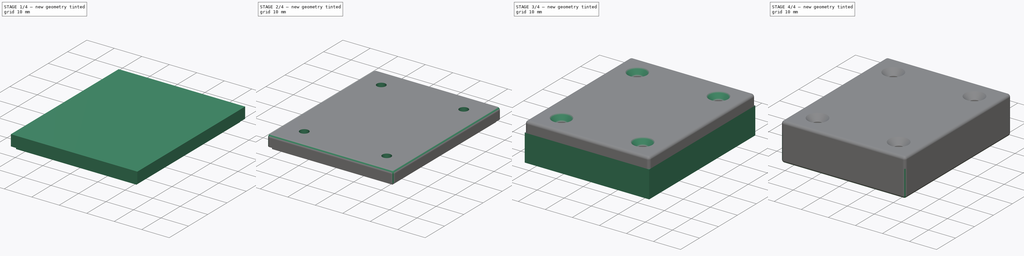
[diagram: build sequence overview — one tinted view per stage of 4, left to right]
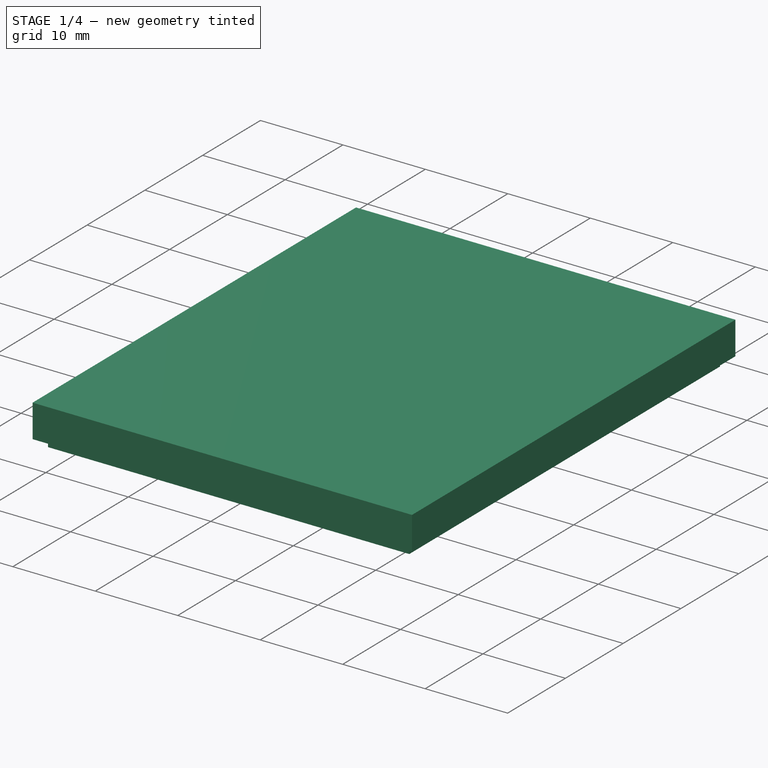
[diagram: stage 1 of 4 — iso view after this stage's code; geometry added in this stage tinted green]
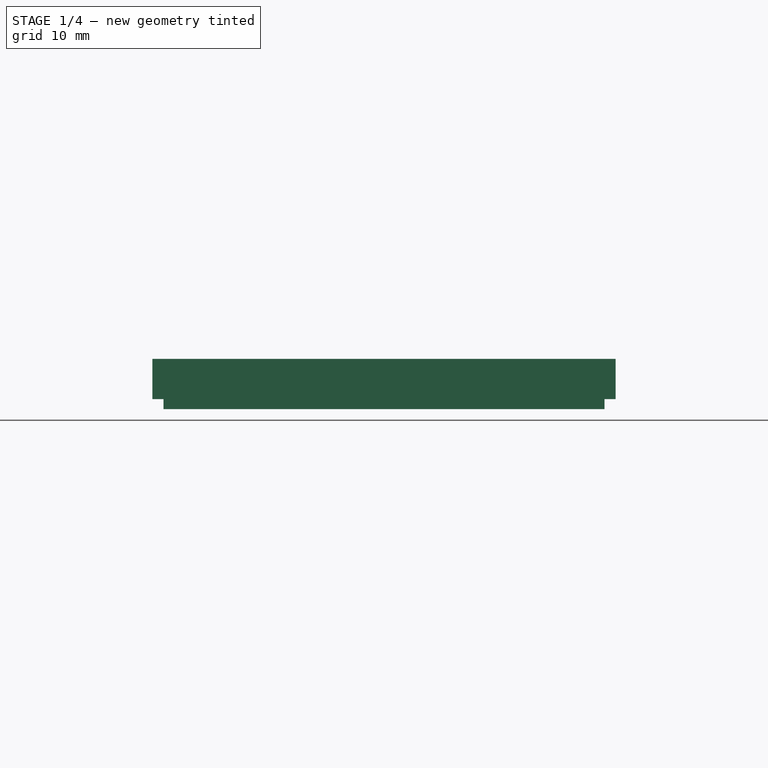
[diagram: stage 1 of 4 — front view after this stage's code; geometry added in this stage tinted green]
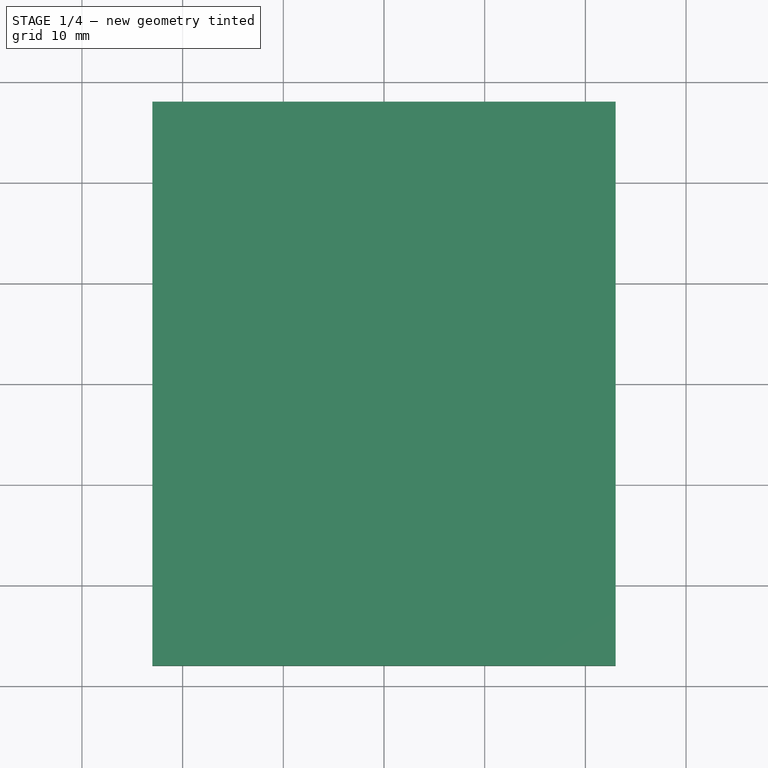
[diagram: stage 1 of 4 — top view after this stage's code; geometry added in this stage tinted green]
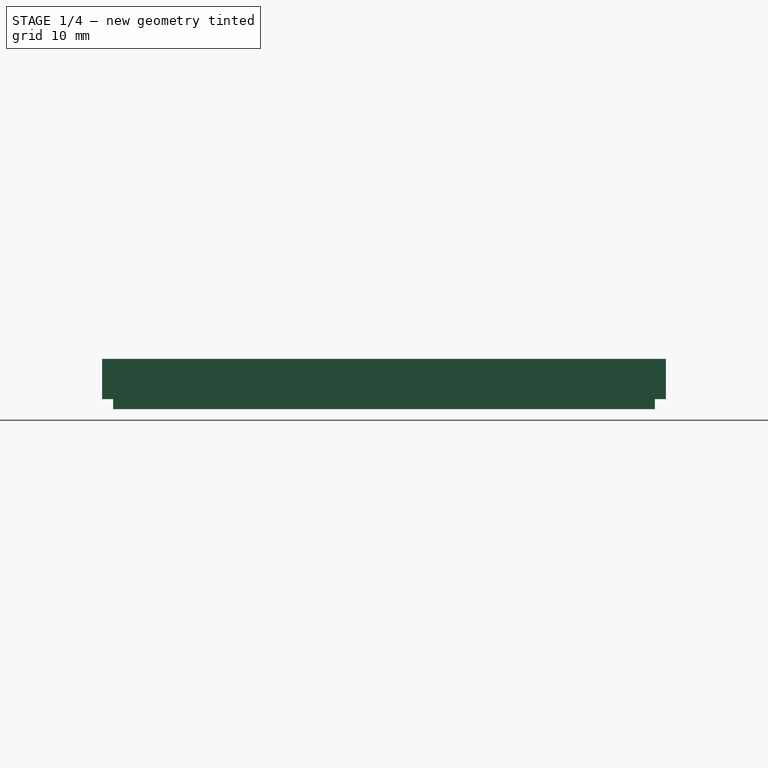
[diagram: stage 1 of 4 — right view after this stage's code; geometry added in this stage tinted green]
FCSTD DOCUMENT  (FreeCAD 0.19R24366 (Git))
Label: parametric_project_box
License: All rights reserved
LicenseURL: http://en.wikipedia.org/wiki/All_rights_reserved
objects: Sketcher::SketchObject×11, PartDesign::Plane×9, PartDesign::Pocket×6, PartDesign::Pad×5, PartDesign::Fillet×2, PartDesign::Body×2, Spreadsheet::Sheet×1, PartDesign::Chamfer×1
note: 50 computed .brp shape members not serialized (recipe doc carries the construction recipe); baked Part::Feature solids carry a one-line shape summary decoded from their .brp

FEATURE [PartDesign::Plane] DatumPlane001  label="coverBottom"
  AttachmentOffset = pos=(0,0,10) rot=(0,0,1;0rad)
  Length = 60.583
  MapMode = 5
  Placement = pos=(0,0,10) rot=(0,0,1;0rad)
  ResizeMode = 0
  Support = -> [XY_Plane001]
  Width = 66.583
  expr: .AttachmentOffset.Base.z = Spreadsheet.bottomHeight
FEATURE [Sketcher::SketchObject] Sketch002
  FullyConstrained = true
  MapMode = 5
  Placement = pos=(0,0,10) rot=(0,0,1;0rad)
  Support = -> [DatumPlane001]
  expr: Constraints[10] = <<Spreadsheet>>.boxDepth + (<<Spreadsheet>>.wallThickness + <<Spreadsheet>>.mountingDistance) * 2 + <<Spreadsheet>>.postHoleSize
  expr: Constraints[9] = <<Spreadsheet>>.boxWidth + (<<Spreadsheet>>.wallThickness + <<Spreadsheet>>.mountingDistance) * 2 + <<Spreadsheet>>.postHoleSize
  sketch-geometry (4):
    g0: LineSegment StartX=-23 StartY=28 StartZ=0 EndX=23 EndY=28 EndZ=0
    g1: LineSegment StartX=23 StartY=28 StartZ=0 EndX=23 EndY=-28 EndZ=0
    g2: LineSegment StartX=23 StartY=-28 StartZ=0 EndX=-23 EndY=-28 EndZ=0
    g3: LineSegment StartX=-23 StartY=-28 StartZ=0 EndX=-23 EndY=28 EndZ=0
  constraints (11):
    c: Coincident(g0,g1)
    c: Coincident(g1,g2)
    c: Coincident(g2,g3)
    c: Coincident(g3,g0)
    c: Horizontal(g0)
    c: Horizontal(g2)
    c: Vertical(g1)
    c: Vertical(g3)
    c: Symmetric(g0,g2,g-1)
    c: Distance(g2) = 46
    c: Distance(g1) = 56
FEATURE [PartDesign::Pad] Pad001  label="coverSolid"
  Direction = (1,1,1)
  Length = 4
  Length2 = 100
  Placement = pos=(0,0,10) rot=(0,0,1;0rad)
  Profile = -> Sketch002
  Type = 0
  expr: Length = <<Spreadsheet>>.topHeight
FEATURE [Sketcher::SketchObject] Sketch003
  FullyConstrained = true
  MapMode = 5
  Placement = pos=(0,0,10) rot=(0,0,1;0rad)
  Support = -> [DatumPlane001]
  expr: Constraints[10] = <<Spreadsheet>>.boxDepth + <<Spreadsheet>>.mountingDistance * 2 + <<Spreadsheet>>.postHoleSize
  expr: Constraints[9] = <<Spreadsheet>>.boxWidth + <<Spreadsheet>>.mountingDistance * 2 + <<Spreadsheet>>.postHoleSize
  sketch-geometry (4):
    g0: LineSegment StartX=21 StartY=26 StartZ=0 EndX=-21 EndY=26 EndZ=0
    g1: LineSegment StartX=-21 StartY=26 StartZ=0 EndX=-21 EndY=-26 EndZ=0
    g2: LineSegment StartX=-21 StartY=-26 StartZ=0 EndX=21 EndY=-26 EndZ=0
    g3: LineSegment StartX=21 StartY=-26 StartZ=0 EndX=21 EndY=26 EndZ=0
  constraints (11):
    c: Coincident(g0,g1)
    c: Coincident(g1,g2)
    c: Coincident(g2,g3)
    c: Coincident(g3,g0)
    c: Horizontal(g0)
    c: Horizontal(g2)
    c: Vertical(g1)
    c: Vertical(g3)
    c: Symmetric(g0,g1,g-1)
    c: Distance(g2) = 42
    c: Distance(g3) = 52
FEATURE [PartDesign::Pocket] Pocket001  label="coverPocket"
  BaseFeature = -> Pad001
  Length = 2
  Length2 = 100
  Placement = pos=(0,0,10) rot=(0,0,1;0rad)
  Profile = -> Sketch003
  Reversed = true
  Type = 0
  expr: Length = <<Spreadsheet>>.topHeight - <<Spreadsheet>>.wallThickness
FEATURE [Sketcher::SketchObject] Sketch005
  FullyConstrained = true
  MapMode = 5
  Placement = pos=(0,0,10) rot=(0,0,1;0rad)
  Support = -> [DatumPlane001]
  expr: Constraints[10] = <<Spreadsheet>>.boxWidth + <<Spreadsheet>>.wallThickness + <<Spreadsheet>>.mountingDistance * 2 + <<Spreadsheet>>.postHoleSize - 0.2
  expr: Constraints[9] = <<Spreadsheet>>.boxDepth + <<Spreadsheet>>.wallThickness + <<Spreadsheet>>.mountingDistance * 2 + <<Spreadsheet>>.postHoleSize - 0.2
  sketch-geometry (4):
    g0: LineSegment StartX=-21.9 StartY=-26.9 StartZ=0 EndX=21.9 EndY=-26.9 EndZ=0
    g1: LineSegment StartX=21.9 StartY=-26.9 StartZ=0 EndX=21.9 EndY=26.9 EndZ=0
    g2: LineSegment StartX=21.9 StartY=26.9 StartZ=0 EndX=-21.9 EndY=26.9 EndZ=0
    g3: LineSegment StartX=-21.9 StartY=26.9 StartZ=0 EndX=-21.9 EndY=-26.9 EndZ=0
  constraints (11):
    c: Coincident(g0,g1)
    c: Coincident(g1,g2)
    c: Coincident(g2,g3)
    c: Coincident(g3,g0)
    c: Horizontal(g0)
    c: Horizontal(g2)
    c: Vertical(g1)
    c: Vertical(g3)
    c: Symmetric(g1,g0,g-1)
    c: Distance(g1) = 53.8
    c: Distance(g0) = 43.8
FEATURE [PartDesign::Pad] Pad002  label="coverEdgeSolid"
  BaseFeature = -> Pocket001
  Direction = (1,1,1)
  Length = 1
  Length2 = 100
  Placement = pos=(0,0,10) rot=(0,0,1;0rad)
  Profile = -> Sketch005
  Reversed = true
  Type = 0
FEATURE [Sketcher::SketchObject] Sketch006
  FullyConstrained = true
  MapMode = 5
  Placement = pos=(0,0,10) rot=(0,0,1;0rad)
  Support = -> [DatumPlane001]
  expr: Constraints[10] = <<Spreadsheet>>.boxWidth + <<Spreadsheet>>.mountingDistance * 2 + <<Spreadsheet>>.postHoleSize
  expr: Constraints[9] = <<Spreadsheet>>.boxDepth + <<Spreadsheet>>.mountingDistance * 2 + <<Spreadsheet>>.postHoleSize
  sketch-geometry (4):
    g0: LineSegment StartX=-21 StartY=26 StartZ=0 EndX=21 EndY=26 EndZ=0
    g1: LineSegment StartX=21 StartY=26 StartZ=0 EndX=21 EndY=-26 EndZ=0
    g2: LineSegment StartX=21 StartY=-26 StartZ=0 EndX=-21 EndY=-26 EndZ=0
    g3: LineSegment StartX=-21 StartY=-26 StartZ=0 EndX=-21 EndY=26 EndZ=0
  constraints (11):
    c: Coincident(g0,g1)
    c: Coincident(g1,g2)
    c: Coincident(g2,g3)
    c: Coincident(g3,g0)
    c: Horizontal(g0)
    c: Horizontal(g2)
    c: Vertical(g1)
    c: Vertical(g3)
    c: Symmetric(g2,g0,g-1)
    c: Distance(g1) = 52
    c: Distance(g2) = 42
FEATURE [PartDesign::Pocket] Pocket003  label="coverEdgePocket"
  BaseFeature = -> Pad002
  Length = 1
  Length2 = 100
  Placement = pos=(0,0,10) rot=(0,0,1;0rad)
  Profile = -> Sketch006
  Type = 0
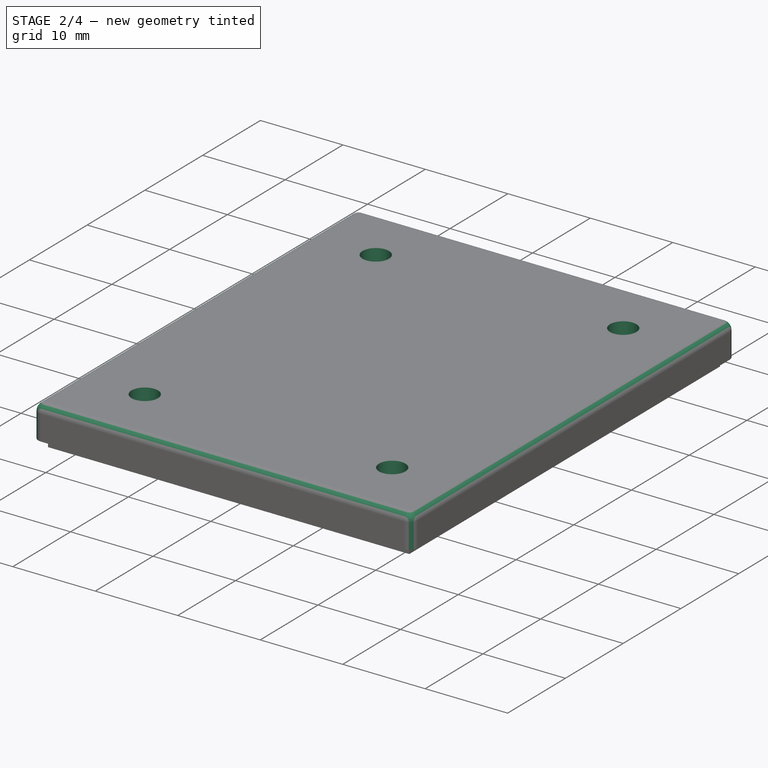
[diagram: stage 2 of 4 — iso view after this stage's code; geometry added in this stage tinted green]
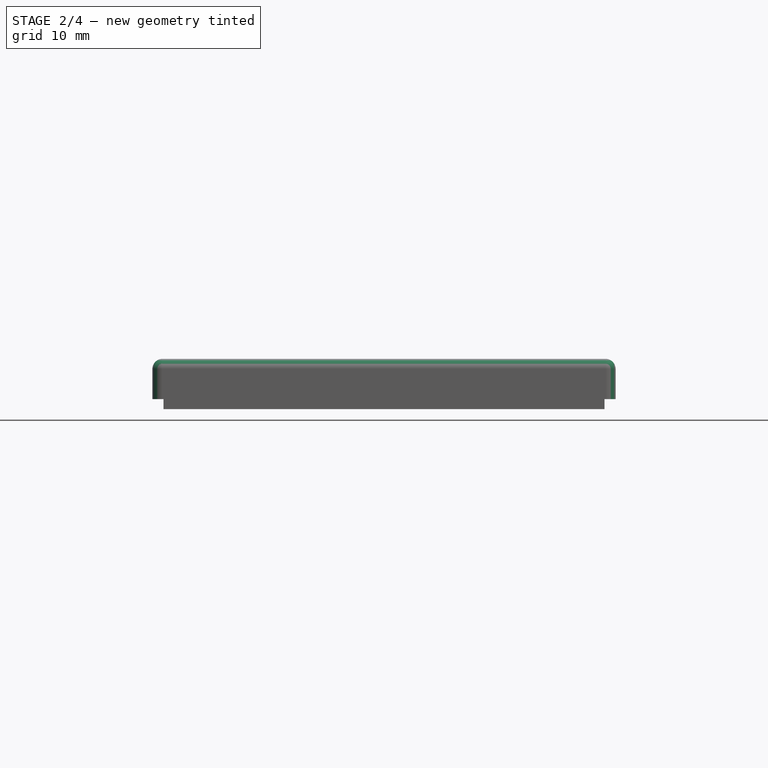
[diagram: stage 2 of 4 — front view after this stage's code; geometry added in this stage tinted green]
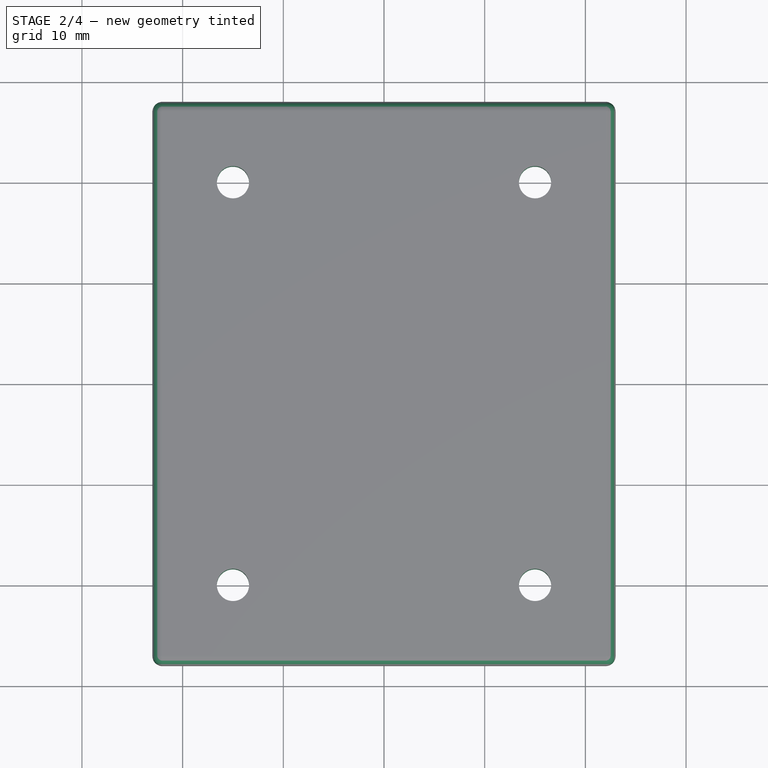
[diagram: stage 2 of 4 — top view after this stage's code; geometry added in this stage tinted green]
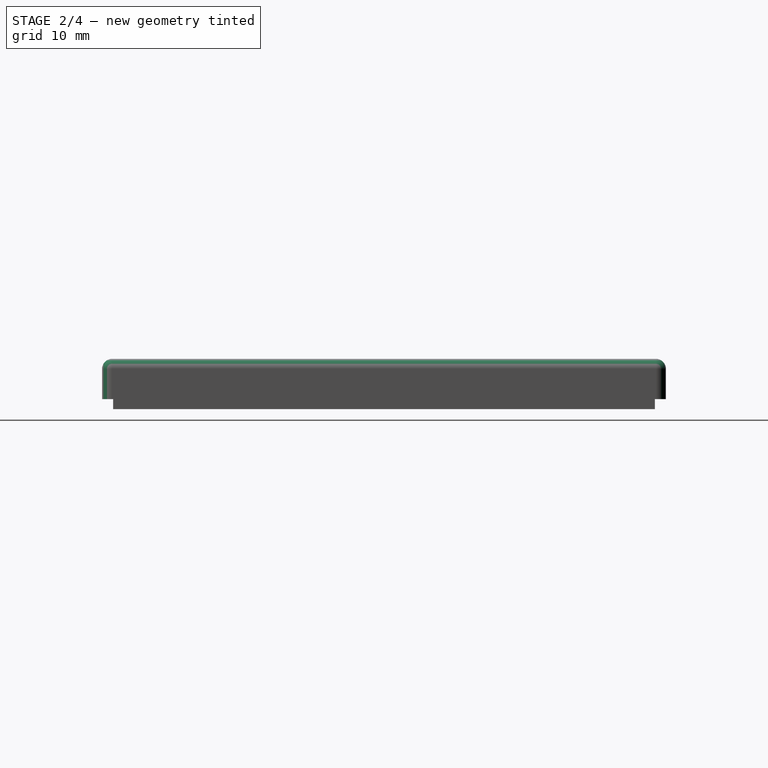
[diagram: stage 2 of 4 — right view after this stage's code; geometry added in this stage tinted green]
FEATURE [PartDesign::Plane] DatumPlane004  label="coverTopInner"
  AttachmentOffset = pos=(0,0,12) rot=(0,0,1;0rad)
  Length = 60.583
  MapMode = 5
  Placement = pos=(0,0,12) rot=(0,0,1;0rad)
  ResizeMode = 0
  Support = -> [XY_Plane001]
  Width = 66.583
  expr: .AttachmentOffset.Base.z = <<Spreadsheet>>.topHeight + <<Spreadsheet>>.bottomHeight - <<Spreadsheet>>.wallThickness
FEATURE [Sketcher::SketchObject] Sketch011
  FullyConstrained = true
  MapMode = 5
  Placement = pos=(0,0,12) rot=(0,0,1;0rad)
  Support = -> [DatumPlane004]
  expr: Constraints[66] = <<Spreadsheet>>.postHoleSize / 2 + <<Spreadsheet>>.mountingWallThickness
  expr: Constraints[65] = <<Spreadsheet>>.mountingDistance + <<Spreadsheet>>.postHoleSize / 2
  expr: Constraints[9] = <<Spreadsheet>>.boxWidth
  expr: Constraints[8] = <<Spreadsheet>>.boxDepth
  sketch-geometry (24):
    g0: LineSegment StartX=-15 StartY=20 StartZ=0 EndX=15 EndY=20 EndZ=0
    g1: LineSegment StartX=15 StartY=20 StartZ=0 EndX=15 EndY=-20 EndZ=0
    g2: LineSegment StartX=15 StartY=-20 StartZ=0 EndX=-15 EndY=-20 EndZ=0
    g3: LineSegment StartX=-15 StartY=-20 StartZ=0 EndX=-15 EndY=20 EndZ=0
    g4: ArcOfCircle CenterX=-15 CenterY=20 CenterZ=0 NormalX=0 NormalY=0 NormalZ=1 AngleXU=0 Radius=3.5 StartAngle=4.71239 EndAngle=6.28319
    g5: ArcOfCircle CenterX=-15 CenterY=-20 CenterZ=0 NormalX=0 NormalY=0 NormalZ=1 AngleXU=0 Radius=3.5 StartAngle=0 EndAngle=1.5708
    g6: ArcOfCircle CenterX=15 CenterY=-20 CenterZ=0 NormalX=0 NormalY=0 NormalZ=1 AngleXU=0 Radius=3.5 StartAngle=1.5708 EndAngle=3.14159
    g7: ArcOfCircle CenterX=15 CenterY=20 CenterZ=0 NormalX=0 NormalY=0 NormalZ=1 AngleXU=0 Radius=3.5 StartAngle=3.14159 EndAngle=4.71239
    g8: LineSegment StartX=-11.5 StartY=20 StartZ=0 EndX=-11.5 EndY=26 EndZ=0
    g9: LineSegment StartX=-11.5 StartY=26 StartZ=0 EndX=-21 EndY=26 EndZ=0
    g10: LineSegment StartX=-21 StartY=26 StartZ=0 EndX=-21 EndY=16.5 EndZ=0
    g11: LineSegment StartX=-21 StartY=16.5 StartZ=0 EndX=-15 EndY=16.5 EndZ=0
    g12: LineSegment StartX=-15 StartY=-16.5 StartZ=0 EndX=-21 EndY=-16.5 EndZ=0
    g13: LineSegment StartX=-21 StartY=-16.5 StartZ=0 EndX=-21 EndY=-26 EndZ=0
    g14: LineSegment StartX=-21 StartY=-26 StartZ=0 EndX=-11.5 EndY=-26 EndZ=0
    g15: LineSegment StartX=-11.5 StartY=-26 StartZ=0 EndX=-11.5 EndY=-20 EndZ=0
    g16: LineSegment StartX=11.5 StartY=-20 StartZ=0 EndX=11.5 EndY=-26 EndZ=0
    g17: LineSegment StartX=11.5 StartY=-26 StartZ=0 EndX=21 EndY=-26 EndZ=0
    g18: LineSegment StartX=21 StartY=-26 StartZ=0 EndX=21 EndY=-16.5 EndZ=0
    g19: LineSegment StartX=21 StartY=-16.5 StartZ=0 EndX=15 EndY=-16.5 EndZ=0
    g20: LineSegment StartX=15 StartY=16.5 StartZ=0 EndX=21 EndY=16.5 EndZ=0
    g21: LineSegment StartX=21 StartY=16.5 StartZ=0 EndX=21 EndY=26 EndZ=0
    g22: LineSegment StartX=21 StartY=26 StartZ=0 EndX=11.5 EndY=26 EndZ=0
    g23: LineSegment StartX=11.5 StartY=26 StartZ=0 EndX=11.5 EndY=20 EndZ=0
  constraints (67):
    c: Coincident(g0,g1)
    c: Coincident(g1,g2)
    c: Coincident(g2,g3)
    c: Coincident(g3,g0)
    c: Horizontal(g0)
    c: Horizontal(g2)
    c: Vertical(g1)
    c: Vertical(g3)
    c: Distance(g1) = 40
    c: Distance(g2) = 30
    c: Symmetric(g2,g0,g-1)
    c: Coincident(g4,g0)
    c: PointOnObject(g4,g0)
    c: PointOnObject(g4,g3)
    c: Coincident(g5,g2)
    c: PointOnObject(g5,g3)
    c: PointOnObject(g5,g2)
    c: Coincident(g6,g1)
    c: PointOnObject(g6,g1)
    c: PointOnObject(g6,g2)
    c: Coincident(g7,g0)
    c: PointOnObject(g7,g0)
    c: PointOnObject(g7,g1)
    c: Equal(g7,g6)
    c: Equal(g6,g5)
    c: Equal(g5,g4)
    c: Tangent(g4,g8) = -1.5708
    c: Coincident(g8,g9)
    c: Horizontal(g9)
    c: Coincident(g9,g10)
    c: Vertical(g10)
    c: Coincident(g10,g11)
    c: Coincident(g11,g4)
    c: Horizontal(g11)
    c: Tangent(g5,g12) = -1.5708
    c: Coincident(g12,g13)
    c: Vertical(g13)
    c: Coincident(g13,g14)
    c: Horizontal(g14)
    c: Coincident(g14,g15)
    c: Coincident(g15,g5)
    c: Vertical(g15)
    c: Tangent(g6,g16) = -1.5708
    c: Coincident(g16,g17)
    c: Horizontal(g17)
    c: Coincident(g17,g18)
    c: Vertical(g18)
    c: Coincident(g18,g19)
    c: Coincident(g19,g6)
    c: Horizontal(g19)
    c: Tangent(g7,g20) = -1.5708
    c: Coincident(g20,g21)
    c: Vertical(g21)
    c: Coincident(g21,g22)
    c: Horizontal(g22)
    c: Coincident(g22,g23)
    c: Coincident(g23,g7)
    c: Vertical(g23)
    c: Equal(g11,g8)
    c: Equal(g8,g12)
    c: Equal(g12,g15)
    c: Equal(g15,g16)
    c: Equal(g16,g19)
    c: Equal(g19,g20)
    c: Equal(g20,g23)
    c: Distance(g11) = 6
    c: Radius(g5) = 3.5
FEATURE [PartDesign::Pad] Pad005  label="contentPostsTop"
  BaseFeature = -> Pocket003
  Direction = (1,1,1)
  Length = 2
  Length2 = 100
  Placement = pos=(0,0,10) rot=(0,0,1;0rad)
  Profile = -> Sketch011
  Reversed = true
  Type = 0
  expr: Length = <<Spreadsheet>>.bottomHeight + <<Spreadsheet>>.topHeight - <<Spreadsheet>>.wallThickness * 2 - Spreadsheet.contentHeight4 - <<Spreadsheet>>.contentThickness
FEATURE [Sketcher::SketchObject] Sketch012
  FullyConstrained = true
  MapMode = 5
  Placement = pos=(0,0,14) rot=(0,0,1;0rad)
  Support = -> [DatumPlane002]
  expr: Constraints[18] = <<Spreadsheet>>.screwHoleSize
  expr: Constraints[10] = <<Spreadsheet>>.boxWidth
  expr: Constraints[9] = <<Spreadsheet>>.boxDepth
  sketch-geometry (8):
    g0: LineSegment StartX=-15 StartY=20 StartZ=0 EndX=15 EndY=20 EndZ=0
    g1: LineSegment StartX=15 StartY=20 StartZ=0 EndX=15 EndY=-20 EndZ=0
    g2: LineSegment StartX=15 StartY=-20 StartZ=0 EndX=-15 EndY=-20 EndZ=0
    g3: LineSegment StartX=-15 StartY=-20 StartZ=0 EndX=-15 EndY=20 EndZ=0
    g4: Circle CenterX=-15 CenterY=20 CenterZ=0 NormalX=0 NormalY=0 NormalZ=1 AngleXU=0 Radius=1.6
    g5: Circle CenterX=15 CenterY=20 CenterZ=0 NormalX=0 NormalY=0 NormalZ=1 AngleXU=0 Radius=1.6
    g6: Circle CenterX=15 CenterY=-20 CenterZ=0 NormalX=0 NormalY=0 NormalZ=1 AngleXU=0 Radius=1.6
    g7: Circle CenterX=-15 CenterY=-20 CenterZ=0 NormalX=0 NormalY=0 NormalZ=1 AngleXU=0 Radius=1.6
  constraints (19):
    c: Coincident(g0,g1)
    c: Coincident(g1,g2)
    c: Coincident(g2,g3)
    c: Coincident(g3,g0)
    c: Horizontal(g0)
    c: Horizontal(g2)
    c: Vertical(g1)
    c: Vertical(g3)
    c: Symmetric(g0,g2,g-1)
    c: Distance(g1) = 40
    c: Distance(g2) = 30
    c: Coincident(g4,g0)
    c: Coincident(g5,g0)
    c: Coincident(g6,g1)
    c: Coincident(g7,g2)
    c: Equal(g4,g7)
    c: Equal(g7,g5)
    c: Equal(g5,g6)
    c: Diameter(g4) = 3.2
FEATURE [PartDesign::Pocket] Pocket006  label="contentHolesTop"
  BaseFeature = -> Pad005
  Length = 4
  Length2 = 100
  Placement = pos=(0,0,10) rot=(0,0,1;0rad)
  Profile = -> Sketch012
  Type = 0
  expr: Length = <<Spreadsheet>>.bottomHeight + <<Spreadsheet>>.topHeight - <<Spreadsheet>>.wallThickness * 1 - Spreadsheet.contentHeight4 - <<Spreadsheet>>.contentThickness
FEATURE [PartDesign::Fillet] Fillet001
  Base = -> Pocket006 [Edge10,Edge4,Edge2,Edge1,Edge5,Edge7,Edge16,Edge8]
  BaseFeature = -> Pocket006
  Placement = pos=(0,0,10) rot=(0,0,1;0rad)
  Radius = 1
  SupportTransform = false
  expr: Radius = <<Spreadsheet>>.filletOuter
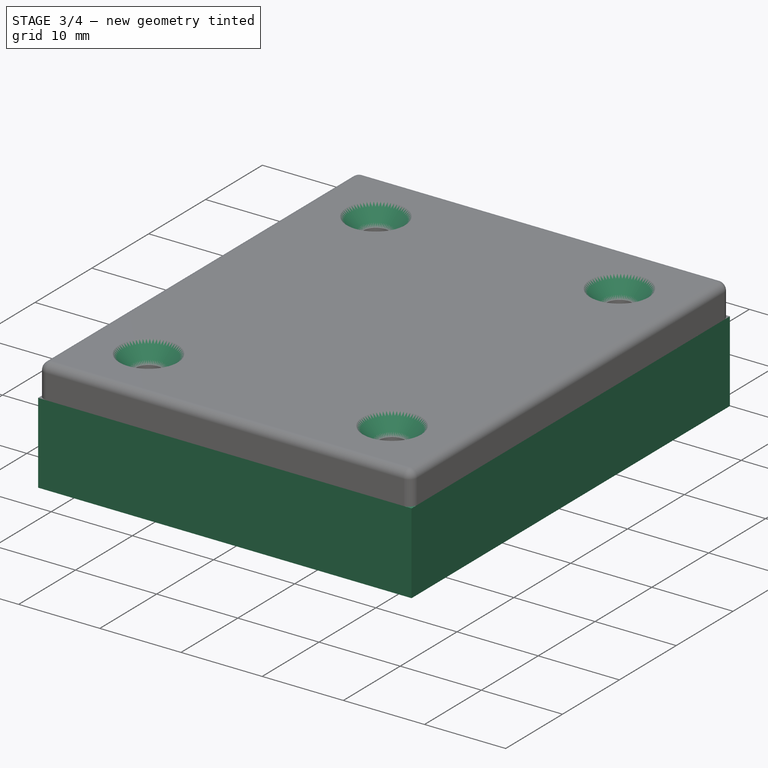
[diagram: stage 3 of 4 — iso view after this stage's code; geometry added in this stage tinted green]
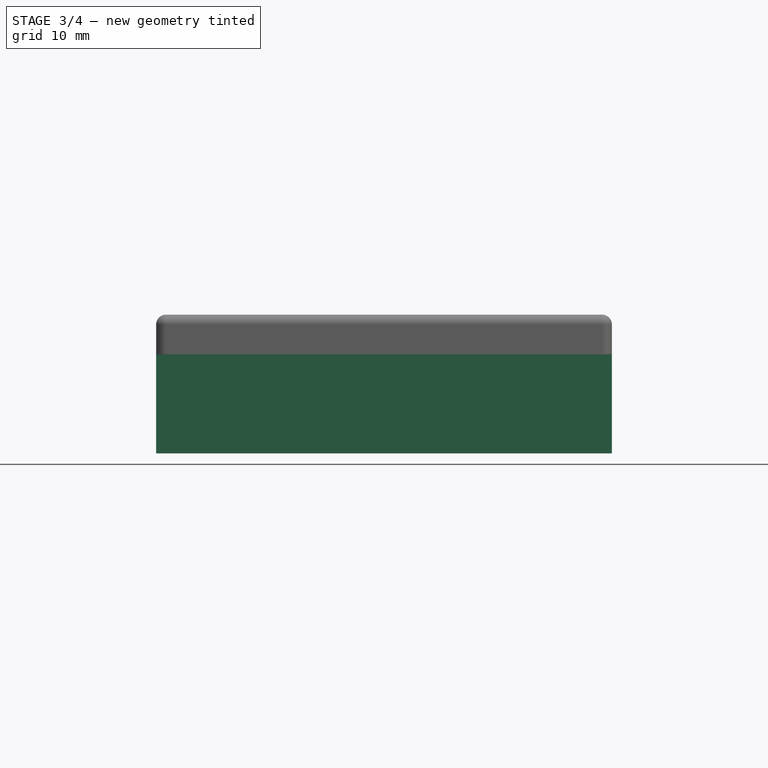
[diagram: stage 3 of 4 — front view after this stage's code; geometry added in this stage tinted green]
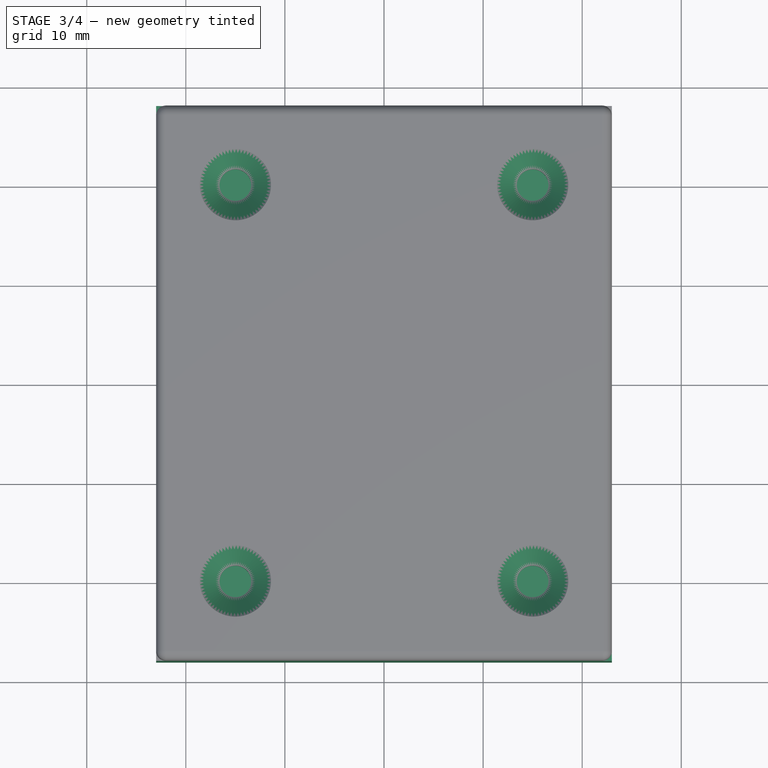
[diagram: stage 3 of 4 — top view after this stage's code; geometry added in this stage tinted green]
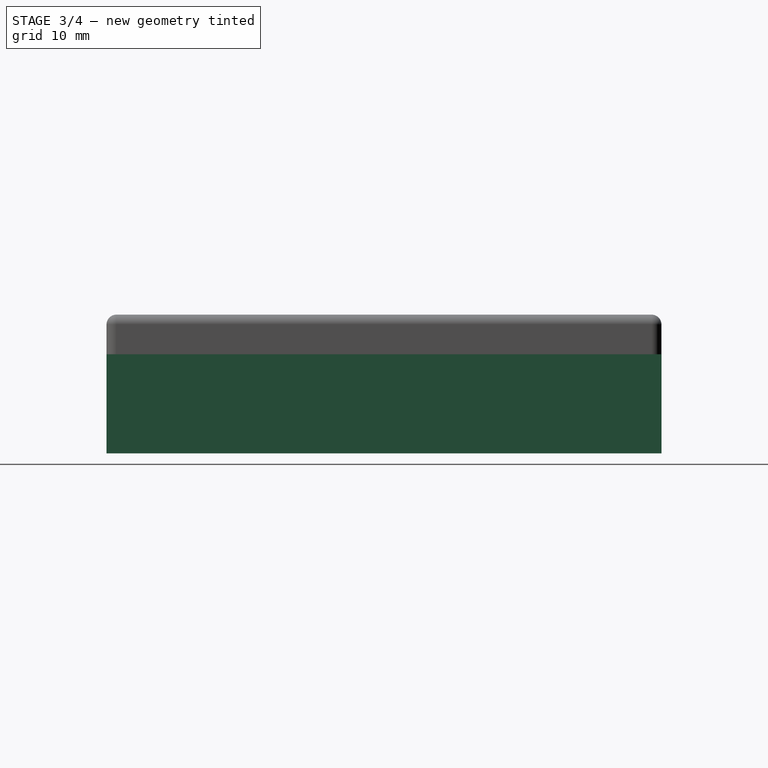
[diagram: stage 3 of 4 — right view after this stage's code; geometry added in this stage tinted green]
FEATURE [Spreadsheet::Sheet] Spreadsheet
  cells = A1=Box bottom height; B1=Box top height; A2(bottomHeight)=10; B2(topHeight)=4; A3=Wall thickness; B3=Outer fillet; A4(wallThickness)=2; B4(filletOuter)=1; A5=Content Hole Width; B5=Content Hole Depth; A6(boxWidth)=30; B6(boxDepth)=40; A7=screw hole size; B7=screw wall thickness; C7=Mounting distance; D7=post hole size; E7=Screw hole chamfer; A8(screwHoleSize)=3.2; B8(mountingWallThickness)=1.5; C8(mountingDistance)=4; D8(postHoleSize)=4; E8(chamferScrewHole)=2; A9=Content Height; B9=Content Thickness; A10(contentHeight4)=6; B10(contentThickness)=2
FEATURE [Sketcher::SketchObject] Sketch
  FullyConstrained = true
  MapMode = 5
  Support = -> [XY_Plane]
  expr: Constraints[9] = <<Spreadsheet>>.boxDepth + (<<Spreadsheet>>.wallThickness + <<Spreadsheet>>.mountingDistance) * 2 + <<Spreadsheet>>.postHoleSize
  expr: Constraints[10] = <<Spreadsheet>>.boxWidth + (<<Spreadsheet>>.wallThickness + <<Spreadsheet>>.mountingDistance) * 2 + <<Spreadsheet>>.postHoleSize
  sketch-geometry (4):
    g0: LineSegment StartX=-23 StartY=28 StartZ=0 EndX=23 EndY=28 EndZ=0
    g1: LineSegment StartX=23 StartY=28 StartZ=0 EndX=23 EndY=-28 EndZ=0
    g2: LineSegment StartX=23 StartY=-28 StartZ=0 EndX=-23 EndY=-28 EndZ=0
    g3: LineSegment StartX=-23 StartY=-28 StartZ=0 EndX=-23 EndY=28 EndZ=0
  constraints (11):
    c: Coincident(g0,g1)
    c: Coincident(g1,g2)
    c: Coincident(g2,g3)
    c: Coincident(g3,g0)
    c: Horizontal(g0)
    c: Horizontal(g2)
    c: Vertical(g1)
    c: Vertical(g3)
    c: Symmetric(g2,g0,g-1)
    c: Distance(g1) = 56
    c: Distance(g2) = 46
FEATURE [PartDesign::Pad] Pad  label="bottomSolid"
  Direction = (1,1,1)
  Length = 10
  Length2 = 100
  Profile = -> Sketch
  Type = 0
  expr: Length = Spreadsheet.bottomHeight
FEATURE [PartDesign::Plane] DatumPlane  label="bottomtop"
  AttachmentOffset = pos=(0,0,10) rot=(0,0,1;0rad)
  Length = 60.583
  MapMode = 5
  Placement = pos=(0,0,10) rot=(0,0,1;0rad)
  ResizeMode = 0
  Support = -> [XY_Plane]
  Width = 66.583
  expr: .AttachmentOffset.Base.z = Spreadsheet.bottomHeight
FEATURE [Sketcher::SketchObject] Sketch001
  FullyConstrained = true
  MapMode = 5
  Placement = pos=(0,0,10) rot=(0,0,1;0rad)
  Support = -> [DatumPlane]
  expr: Constraints[10] = <<Spreadsheet>>.boxWidth + <<Spreadsheet>>.mountingDistance * 2 + <<Spreadsheet>>.postHoleSize
  expr: Constraints[9] = <<Spreadsheet>>.boxDepth + <<Spreadsheet>>.mountingDistance * 2 + <<Spreadsheet>>.postHoleSize
  sketch-geometry (4):
    g0: LineSegment StartX=-21 StartY=26 StartZ=0 EndX=21 EndY=26 EndZ=0
    g1: LineSegment StartX=21 StartY=26 StartZ=0 EndX=21 EndY=-26 EndZ=0
    g2: LineSegment StartX=21 StartY=-26 StartZ=0 EndX=-21 EndY=-26 EndZ=0
    g3: LineSegment StartX=-21 StartY=-26 StartZ=0 EndX=-21 EndY=26 EndZ=0
  constraints (11):
    c: Coincident(g0,g1)
    c: Coincident(g1,g2)
    c: Coincident(g2,g3)
    c: Coincident(g3,g0)
    c: Horizontal(g0)
    c: Horizontal(g2)
    c: Vertical(g1)
    c: Vertical(g3)
    c: Symmetric(g0,g2,g-1)
    c: Distance(g1) = 52
    c: Distance(g2) = 42
FEATURE [PartDesign::Pocket] Pocket  label="boxHole"
  BaseFeature = -> Pad
  Length = 8
  Length2 = 100
  Profile = -> Sketch001
  Type = 0
  expr: Length = Spreadsheet.bottomHeight - <<Spreadsheet>>.wallThickness
FEATURE [PartDesign::Chamfer] Chamfer
  Angle = 45
  Base = -> Fillet001 [Edge50,Edge49,Edge47,Edge48]
  BaseFeature = -> Fillet001
  ChamferType = 0
  FlipDirection = false
  Placement = pos=(0,0,10) rot=(0,0,1;0rad)
  Size = 2
  Size2 = 1
  SupportTransform = false
  expr: Size = <<Spreadsheet>>.chamferScrewHole
FEATURE [PartDesign::Body] Body001  label="boxCover"
  Group = -> [DatumPlane001,Sketch002,Pad001,Sketch003,Pocket001,Sketch005,Pad002,Sketch006,Pocket003,DatumPlane002,DatumPlane004,Sketch011,Pad005,Sketch012,Pocket006,Fillet001,Chamfer]
  Origin = -> Origin001
  Tip = -> Chamfer
FEATURE [PartDesign::Plane] DatumPlane005  label="plane_front"
  AttachmentOffset = pos=(0,0,28) rot=(0,0,1;0rad)
  Length = 60
  MapMode = 2
  Placement = pos=(0,-28,-6.2e-15) rot=(1,0,0;1.5708rad)
  ResizeMode = 0
  Support = -> [XZ_Plane]
  Width = 60
  expr: .AttachmentOffset.Base.z = (<<Spreadsheet>>.boxDepth + (<<Spreadsheet>>.wallThickness + <<Spreadsheet>>.mountingDistance) * 2 + <<Spreadsheet>>.postHoleSize) / 2
FEATURE [PartDesign::Plane] DatumPlane006  label="plane_back"
  AttachmentOffset = pos=(0,0,-28) rot=(0,0,1;0rad)
  Length = 60
  MapMode = 5
  Placement = pos=(0,28,6.2e-15) rot=(1,0,0;1.5708rad)
  ResizeMode = 0
  Support = -> [XZ_Plane]
  Width = 60
  expr: .AttachmentOffset.Base.z = -(<<Spreadsheet>>.boxDepth + (<<Spreadsheet>>.wallThickness + <<Spreadsheet>>.mountingDistance) * 2 + <<Spreadsheet>>.postHoleSize) / 2
FEATURE [PartDesign::Plane] DatumPlane007  label="plane_right"
  AttachmentOffset = pos=(0,0,23) rot=(0,0,1;0rad)
  Length = 66.583
  MapMode = 2
  Placement = pos=(23,-5.1e-15,5.1e-15) rot=(0.57735,0.57735,0.57735;2.0944rad)
  ResizeMode = 0
  Support = -> [YZ_Plane]
  Width = 60.583
  expr: .AttachmentOffset.Base.z = (<<Spreadsheet>>.boxWidth + (<<Spreadsheet>>.wallThickness + <<Spreadsheet>>.mountingDistance) * 2 + <<Spreadsheet>>.postHoleSize) / 2
FEATURE [PartDesign::Plane] DatumPlane008  label="plane_left"
  AttachmentOffset = pos=(0,0,-23) rot=(0,0,1;0rad)
  Length = 66.583
  MapMode = 5
  Placement = pos=(-23,5.1e-15,-5.1e-15) rot=(0.57735,0.57735,0.57735;2.0944rad)
  ResizeMode = 0
  Support = -> [YZ_Plane]
  Width = 60.583
  expr: .AttachmentOffset.Base.z = -(<<Spreadsheet>>.boxWidth + (<<Spreadsheet>>.wallThickness + <<Spreadsheet>>.mountingDistance) * 2 + <<Spreadsheet>>.postHoleSize) / 2
FEATURE [PartDesign::Body] Body  label="boxBottom"
  Group = -> [Sketch,Pad,DatumPlane,Sketch001,Pocket,Sketch004,Pocket002,DatumPlane003,Sketch009,Pad004,Sketch010,Pocket005,Fillet,DatumPlane005,DatumPlane006,DatumPlane007,DatumPlane008]
  Origin = -> Origin
  Tip = -> Fillet
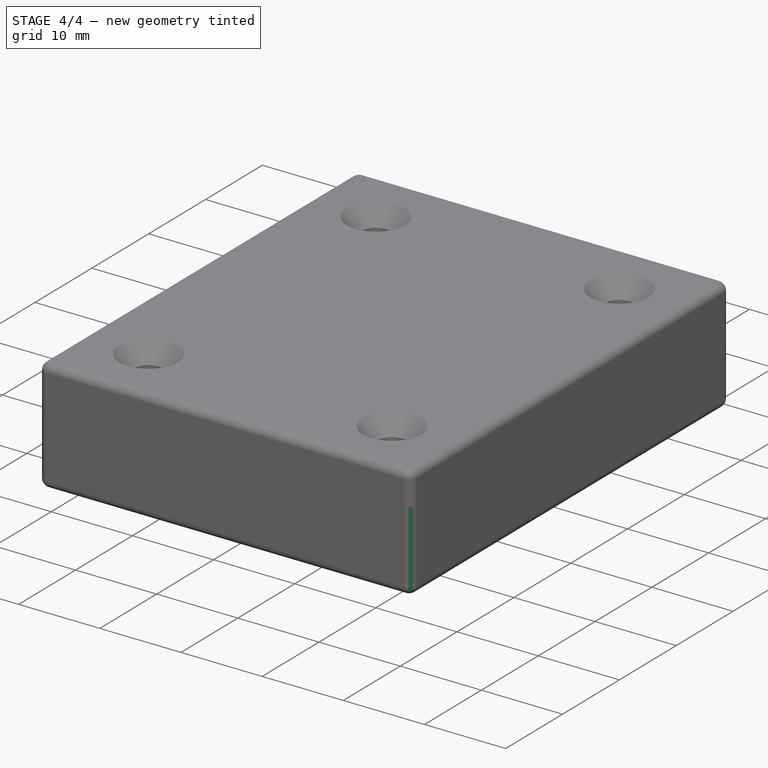
[diagram: stage 4 of 4 — iso view after this stage's code; geometry added in this stage tinted green]
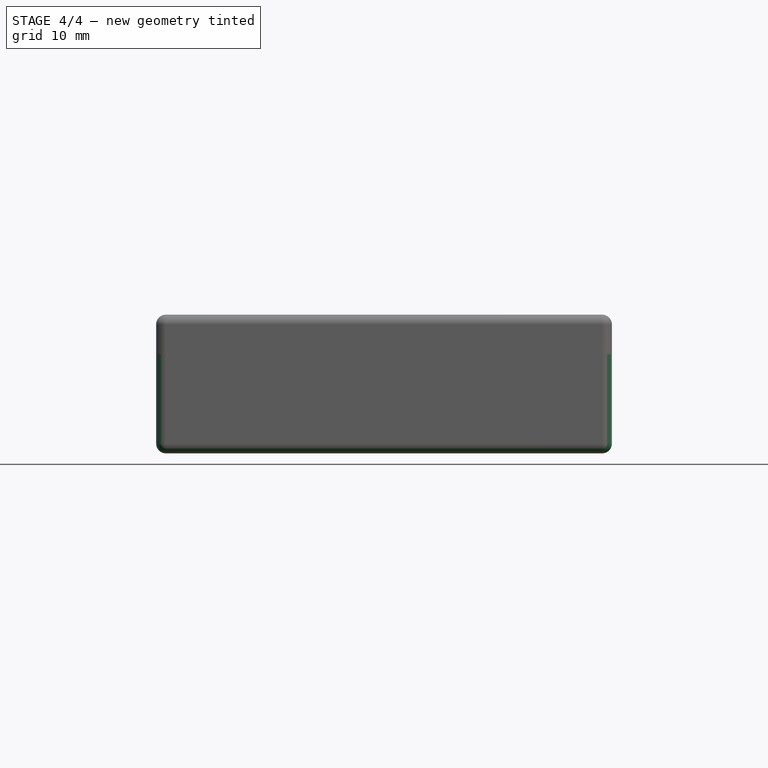
[diagram: stage 4 of 4 — front view after this stage's code; geometry added in this stage tinted green]
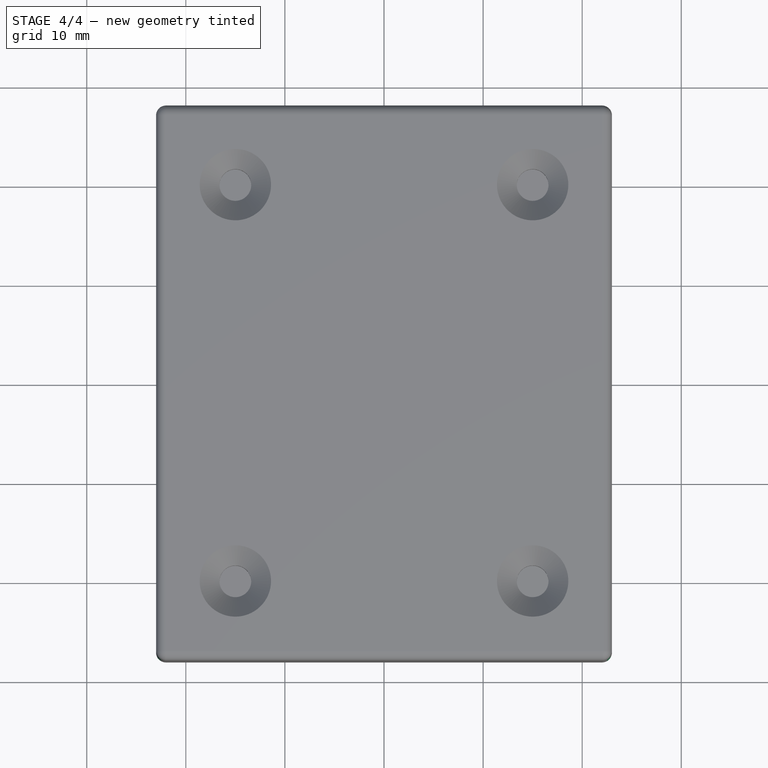
[diagram: stage 4 of 4 — top view after this stage's code; geometry added in this stage tinted green]
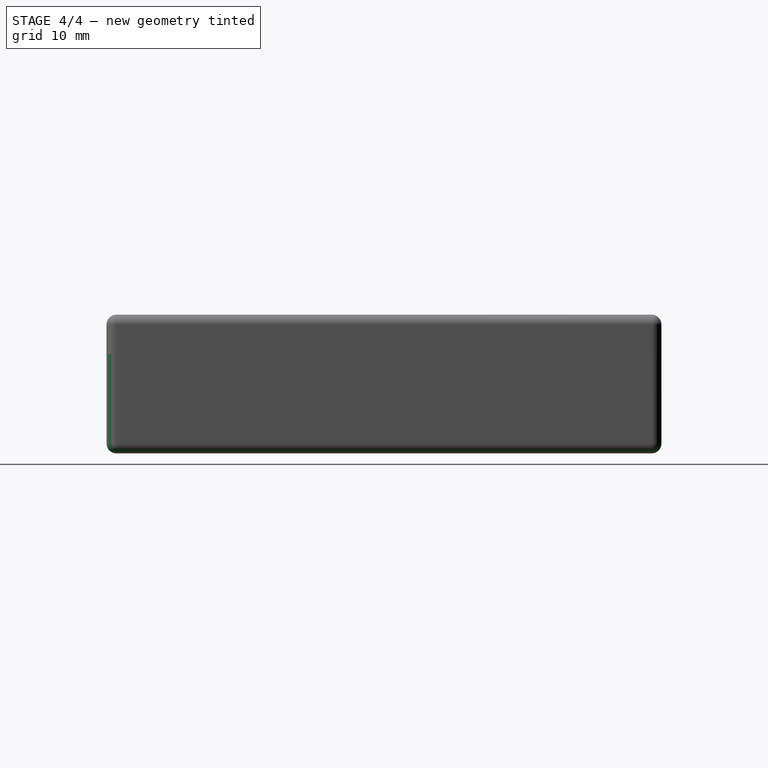
[diagram: stage 4 of 4 — right view after this stage's code; geometry added in this stage tinted green]
FEATURE [Sketcher::SketchObject] Sketch004
  FullyConstrained = true
  MapMode = 5
  Placement = pos=(0,0,10) rot=(0,0,1;0rad)
  Support = -> [DatumPlane]
  expr: Constraints[10] = <<Spreadsheet>>.boxWidth + <<Spreadsheet>>.wallThickness + <<Spreadsheet>>.mountingDistance * 2 + <<Spreadsheet>>.postHoleSize + 0.2
  expr: Constraints[9] = <<Spreadsheet>>.boxDepth + <<Spreadsheet>>.wallThickness + <<Spreadsheet>>.mountingDistance * 2 + <<Spreadsheet>>.postHoleSize + 0.2
  sketch-geometry (4):
    g0: LineSegment StartX=-22.1 StartY=27.1 StartZ=0 EndX=22.1 EndY=27.1 EndZ=0
    g1: LineSegment StartX=22.1 StartY=27.1 StartZ=0 EndX=22.1 EndY=-27.1 EndZ=0
    g2: LineSegment StartX=22.1 StartY=-27.1 StartZ=0 EndX=-22.1 EndY=-27.1 EndZ=0
    g3: LineSegment StartX=-22.1 StartY=-27.1 StartZ=0 EndX=-22.1 EndY=27.1 EndZ=0
  constraints (11):
    c: Coincident(g0,g1)
    c: Coincident(g1,g2)
    c: Coincident(g2,g3)
    c: Coincident(g3,g0)
    c: Horizontal(g0)
    c: Horizontal(g2)
    c: Vertical(g1)
    c: Vertical(g3)
    c: Symmetric(g2,g0,g-1)
    c: Distance(g1) = 54.2
    c: Distance(g2) = 44.2
FEATURE [PartDesign::Pocket] Pocket002  label="alignmentEdge"
  BaseFeature = -> Pocket
  Length = 1
  Length2 = 100
  Profile = -> Sketch004
  Type = 0
FEATURE [PartDesign::Plane] DatumPlane002  label="coverTop"
  AttachmentOffset = pos=(0,0,14) rot=(0,0,1;0rad)
  Length = 60.583
  MapMode = 5
  Placement = pos=(0,0,14) rot=(0,0,1;0rad)
  ResizeMode = 0
  Support = -> [XY_Plane001]
  Width = 66.583
  expr: .AttachmentOffset.Base.z = <<Spreadsheet>>.bottomHeight + <<Spreadsheet>>.topHeight
FEATURE [PartDesign::Plane] DatumPlane003  label="contentPlane"
  AttachmentOffset = pos=(0,0,8) rot=(0,0,1;0rad)
  Length = 60.583
  MapMode = 5
  Placement = pos=(0,0,8) rot=(0,0,1;0rad)
  ResizeMode = 0
  Support = -> [XY_Plane]
  Width = 66.583
  expr: .AttachmentOffset.Base.z = <<Spreadsheet>>.wallThickness + Spreadsheet.contentHeight4
FEATURE [Sketcher::SketchObject] Sketch009
  FullyConstrained = true
  MapMode = 5
  Placement = pos=(0,0,8) rot=(0,0,1;0rad)
  Support = -> [DatumPlane003]
  expr: Constraints[9] = <<Spreadsheet>>.boxDepth
  expr: Constraints[10] = <<Spreadsheet>>.boxWidth
  expr: Constraints[26] = <<Spreadsheet>>.postHoleSize / 2 + <<Spreadsheet>>.mountingWallThickness
  expr: Constraints[35] = <<Spreadsheet>>.mountingDistance + <<Spreadsheet>>.postHoleSize / 2
  sketch-geometry (24):
    g0: LineSegment StartX=-15 StartY=20 StartZ=0 EndX=15 EndY=20 EndZ=0
    g1: LineSegment StartX=15 StartY=20 StartZ=0 EndX=15 EndY=-20 EndZ=0
    g2: LineSegment StartX=15 StartY=-20 StartZ=0 EndX=-15 EndY=-20 EndZ=0
    g3: LineSegment StartX=-15 StartY=-20 StartZ=0 EndX=-15 EndY=20 EndZ=0
    g4: ArcOfCircle CenterX=-15 CenterY=-20 CenterZ=0 NormalX=0 NormalY=0 NormalZ=1 AngleXU=0 Radius=3.5 StartAngle=-9e-16 EndAngle=1.5708
    g5: ArcOfCircle CenterX=15 CenterY=-20 CenterZ=0 NormalX=0 NormalY=0 NormalZ=1 AngleXU=0 Radius=3.5 StartAngle=1.5708 EndAngle=3.14159
    g6: ArcOfCircle CenterX=15 CenterY=20 CenterZ=0 NormalX=0 NormalY=0 NormalZ=1 AngleXU=0 Radius=3.5 StartAngle=3.14159 EndAngle=4.71239
    g7: ArcOfCircle CenterX=-15 CenterY=20 CenterZ=0 NormalX=0 NormalY=0 NormalZ=1 AngleXU=0 Radius=3.5 StartAngle=4.71239 EndAngle=6.28319
    g8: LineSegment StartX=-15 StartY=-16.5 StartZ=0 EndX=-21 EndY=-16.5 EndZ=0
    g9: LineSegment StartX=-21 StartY=-16.5 StartZ=0 EndX=-21 EndY=-26 EndZ=0
    g10: LineSegment StartX=-21 StartY=-26 StartZ=0 EndX=-11.5 EndY=-26 EndZ=0
    g11: LineSegment StartX=-11.5 StartY=-26 StartZ=0 EndX=-11.5 EndY=-20 EndZ=0
    g12: LineSegment StartX=11.5 StartY=-20 StartZ=0 EndX=11.5 EndY=-26 EndZ=0
    g13: LineSegment StartX=11.5 StartY=-26 StartZ=0 EndX=21 EndY=-26 EndZ=0
    g14: LineSegment StartX=21 StartY=-26 StartZ=0 EndX=21 EndY=-16.5 EndZ=0
    g15: LineSegment StartX=21 StartY=-16.5 StartZ=0 EndX=15 EndY=-16.5 EndZ=0
    g16: LineSegment StartX=15 StartY=16.5 StartZ=0 EndX=21 EndY=16.5 EndZ=0
    g17: LineSegment StartX=21 StartY=16.5 StartZ=0 EndX=21 EndY=26 EndZ=0
    g18: LineSegment StartX=21 StartY=26 StartZ=0 EndX=11.5 EndY=26 EndZ=0
    g19: LineSegment StartX=11.5 StartY=26 StartZ=0 EndX=11.5 EndY=20 EndZ=0
    g20: LineSegment StartX=-11.5 StartY=20 StartZ=0 EndX=-11.5 EndY=26 EndZ=0
    g21: LineSegment StartX=-11.5 StartY=26 StartZ=0 EndX=-21 EndY=26 EndZ=0
    g22: LineSegment StartX=-21 StartY=26 StartZ=0 EndX=-21 EndY=16.5 EndZ=0
    g23: LineSegment StartX=-21 StartY=16.5 StartZ=0 EndX=-15 EndY=16.5 EndZ=0
  constraints (67):
    c: Coincident(g0,g1)
    c: Coincident(g1,g2)
    c: Coincident(g2,g3)
    c: Coincident(g3,g0)
    c: Horizontal(g0)
    c: Horizontal(g2)
    c: Vertical(g1)
    c: Vertical(g3)
    c: Symmetric(g0,g2,g-1)
    c: Distance(g1) = 40
    c: Distance(g2) = 30
    c: Coincident(g4,g2)
    c: PointOnObject(g4,g3)
    c: PointOnObject(g4,g2)
    c: Coincident(g5,g1)
    c: PointOnObject(g5,g1)
    c: PointOnObject(g5,g2)
    c: Coincident(g6,g0)
    c: PointOnObject(g6,g0)
    c: PointOnObject(g6,g1)
    c: Coincident(g7,g0)
    c: PointOnObject(g7,g0)
    c: PointOnObject(g7,g3)
    c: Equal(g7,g4)
    c: Equal(g4,g5)
    c: Equal(g5,g6)
    c: Radius(g6) = 3.5
    c: Tangent(g4,g8) = -1.5708
    c: Coincident(g8,g9)
    c: Coincident(g9,g10)
    c: Coincident(g10,g11)
    c: Coincident(g11,g4)
    c: Vertical(g11)
    c: Vertical(g9)
    c: Horizontal(g10)
    c: Distance(g8) = 6
    c: Tangent(g5,g12) = -1.5708
    c: Coincident(g12,g13)
    c: Horizontal(g13)
    c: Coincident(g13,g14)
    c: Vertical(g14)
    c: Coincident(g14,g15)
    c: Coincident(g15,g5)
    c: Horizontal(g15)
    c: Tangent(g6,g16) = -1.5708
    c: Coincident(g16,g17)
    c: Vertical(g17)
    c: Coincident(g17,g18)
    c: Horizontal(g18)
    c: Coincident(g18,g19)
    c: Coincident(g19,g6)
    c: Vertical(g19)
    c: Tangent(g7,g20) = -1.5708
    c: Coincident(g20,g21)
    c: Horizontal(g21)
    c: Coincident(g21,g22)
    c: Vertical(g22)
    c: Coincident(g22,g23)
    c: Coincident(g23,g7)
    c: Horizontal(g23)
    c: Equal(g23,g11)
    c: Equal(g11,g8)
    c: Equal(g8,g12)
    c: Equal(g12,g15)
    c: Equal(g15,g16)
    c: Equal(g16,g19)
    c: Equal(g19,g20)
FEATURE [PartDesign::Pad] Pad004  label="contentPostsBot"
  BaseFeature = -> Pocket002
  Direction = (1,1,1)
  Length = 6
  Length2 = 100
  Profile = -> Sketch009
  Reversed = true
  Type = 0
  expr: Length = Spreadsheet.contentHeight4
FEATURE [Sketcher::SketchObject] Sketch010
  FullyConstrained = true
  MapMode = 5
  Placement = pos=(0,0,8) rot=(0,0,1;0rad)
  Support = -> [DatumPlane003]
  expr: Constraints[16] = <<Spreadsheet>>.postHoleSize
  expr: Constraints[17] = <<Spreadsheet>>.boxDepth
  expr: Constraints[18] = <<Spreadsheet>>.boxWidth
  sketch-geometry (8):
    g0: LineSegment StartX=-15 StartY=20 StartZ=0 EndX=15 EndY=20 EndZ=0
    g1: LineSegment StartX=15 StartY=20 StartZ=0 EndX=15 EndY=-20 EndZ=0
    g2: LineSegment StartX=15 StartY=-20 StartZ=0 EndX=-15 EndY=-20 EndZ=0
    g3: LineSegment StartX=-15 StartY=-20 StartZ=0 EndX=-15 EndY=20 EndZ=0
    g4: Circle CenterX=15 CenterY=20 CenterZ=0 NormalX=0 NormalY=0 NormalZ=1 AngleXU=0 Radius=2
    g5: Circle CenterX=-15 CenterY=20 CenterZ=0 NormalX=0 NormalY=0 NormalZ=1 AngleXU=0 Radius=2
    g6: Circle CenterX=-15 CenterY=-20 CenterZ=0 NormalX=0 NormalY=0 NormalZ=1 AngleXU=0 Radius=2
    g7: Circle CenterX=15 CenterY=-20 CenterZ=0 NormalX=0 NormalY=0 NormalZ=1 AngleXU=0 Radius=2
  constraints (19):
    c: Coincident(g0,g1)
    c: Coincident(g1,g2)
    c: Coincident(g2,g3)
    c: Coincident(g3,g0)
    c: Horizontal(g0)
    c: Horizontal(g2)
    c: Vertical(g1)
    c: Vertical(g3)
    c: Symmetric(g0,g2,g-1)
    c: Coincident(g4,g0)
    c: Coincident(g5,g0)
    c: Coincident(g6,g2)
    c: Coincident(g7,g1)
    c: Equal(g7,g4)
    c: Equal(g4,g5)
    c: Equal(g5,g6)
    c: Diameter(g4) = 4
    c: Distance(g1) = 40
    c: Distance(g2) = 30
FEATURE [PartDesign::Pocket] Pocket005  label="contentHolesBot"
  BaseFeature = -> Pad004
  Length = 6
  Length2 = 100
  Profile = -> Sketch010
  Type = 0
  expr: Length = Spreadsheet.contentHeight4
FEATURE [PartDesign::Fillet] Fillet
  Base = -> Pocket005 [Edge8,Edge5,Edge11,Edge6,Edge9,Edge3,Edge2,Edge1]
  BaseFeature = -> Pocket005
  Radius = 1
  SupportTransform = false
  expr: Radius = <<Spreadsheet>>.filletOuter
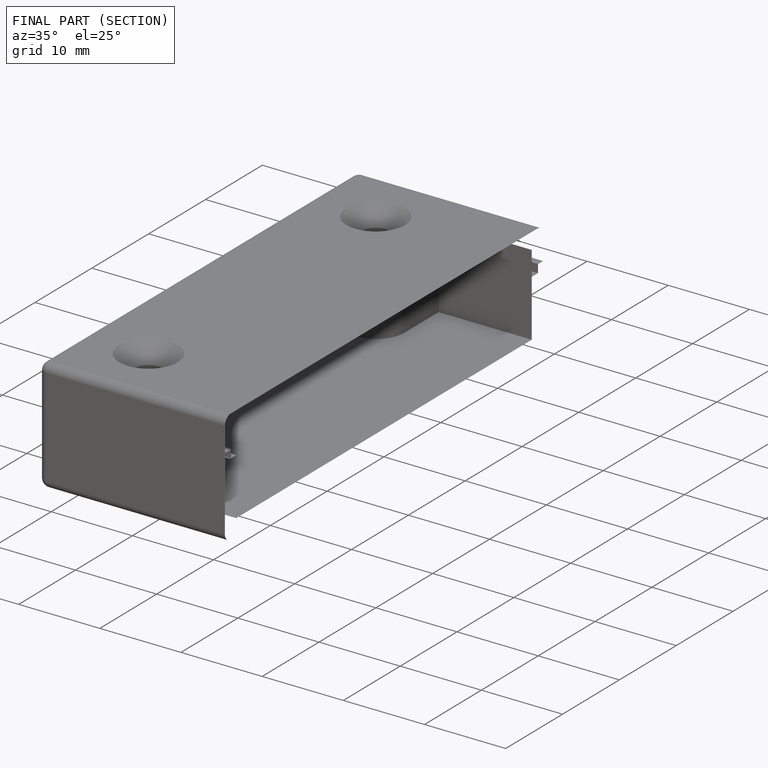
[diagram: finished part — half-section view (interior)]
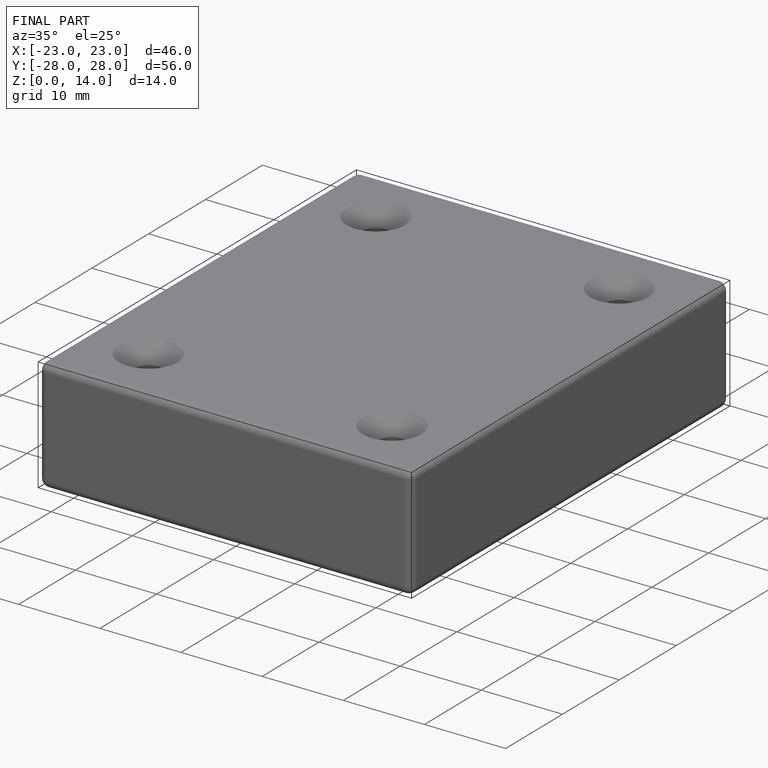
[diagram: finished part — iso view with bounding-box wireframe]
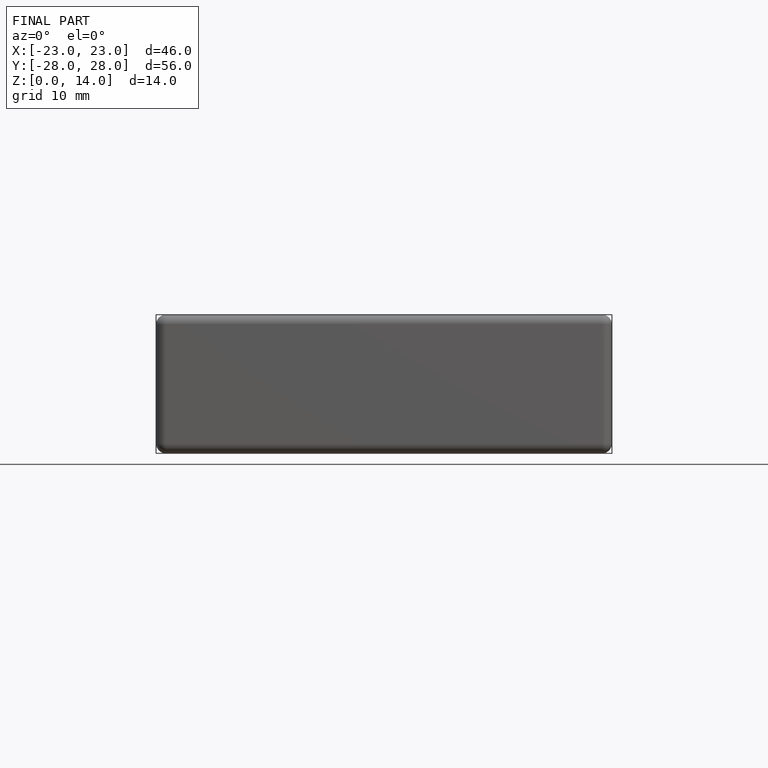
[diagram: finished part — front view with bounding-box wireframe]
